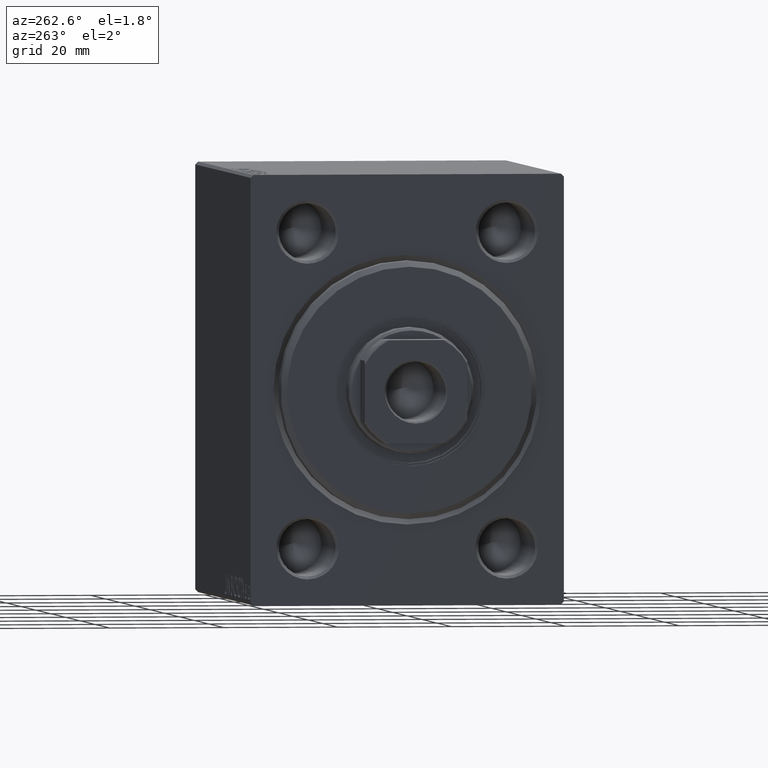
[diagram: clean part render]
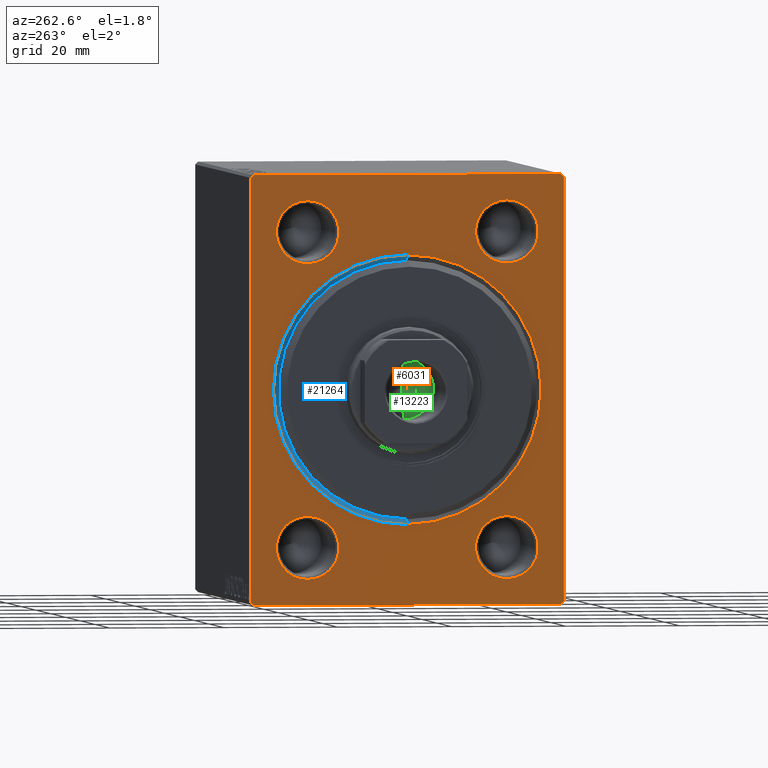
[diagram: same view with three faces highlighted in distinct colors, each labeled with its STEP entity id]
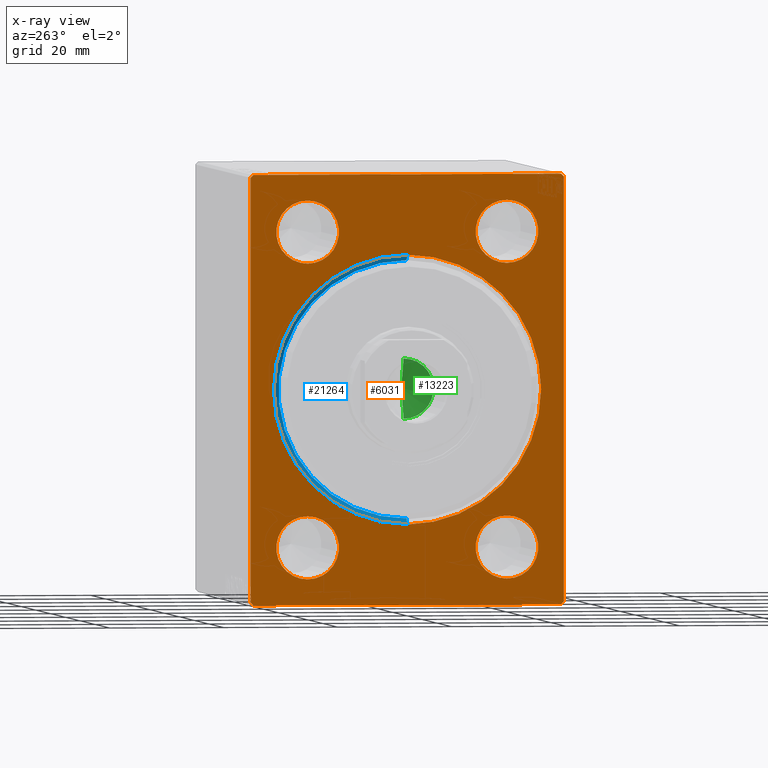
[diagram: x-ray of the same camera — body ghosted, the three highlighted faces saturated]
A machine part, auxiliary view with three faces highlighted in distinct colors.
The next image is the same camera in x-ray (body ghosted, the three faces saturated) — at least one of them is partly hidden behind the body in this view.
Their STEP definitions:

[orange] entity #6031 — the highlighted planar face has unit normal (1, 0, 0).
#347 = CIRCLE ( 'NONE', #27554, 23.50000000000000355 ) ;
#567 = EDGE_CURVE ( 'NONE', #15359, #8182, #32479, .T. ) ;
#964 = CIRCLE ( 'NONE', #10958, 5.500000000000018652 ) ;
#1106 = CARTESIAN_POINT ( 'NONE',  ( 0.000000000000000000, -17.50000000000000000, 27.50000000000000000 ) ) ;
#1153 = AXIS2_PLACEMENT_3D ( 'NONE', #26358, #9287, #29474 ) ;
#1640 = DIRECTION ( 'NONE',  ( 1.000000000000000000, 0.000000000000000000, 0.000000000000000000 ) ) ;
#2021 = DIRECTION ( 'NONE',  ( 0.000000000000000000, -1.000000000000000000, -2.523234146875355998E-16 ) ) ;
#2429 = EDGE_CURVE ( 'NONE', #30643, #29683, #347, .T. ) ;
#2618 = DIRECTION ( 'NONE',  ( -0.000000000000000000, -0.7071067811865474617, 0.7071067811865474617 ) ) ;
#2708 = VERTEX_POINT ( 'NONE', #27925 ) ;
#2914 = EDGE_LOOP ( 'NONE', ( #15602, #9484 ) ) ;
#3178 = FACE_OUTER_BOUND ( 'NONE', #21190, .T. ) ;
#3253 = ORIENTED_EDGE ( 'NONE', *, *, #567, .T. ) ;
#3358 = CARTESIAN_POINT ( 'NONE',  ( 0.000000000000000000, 27.49999999999999645, 37.00000000000001421 ) ) ;
#3762 = CARTESIAN_POINT ( 'NONE',  ( 0.000000000000000000, -27.49999999999999645, 37.49999999999998579 ) ) ;
#4647 = EDGE_LOOP ( 'NONE', ( #8966, #25151 ) ) ;
#4924 = DIRECTION ( 'NONE',  ( 1.000000000000000000, 0.000000000000000000, 0.000000000000000000 ) ) ;
#5108 = CARTESIAN_POINT ( 'NONE',  ( 0.000000000000000000, -17.50000000000000000, -27.49999999999999645 ) ) ;
#5403 = VERTEX_POINT ( 'NONE', #21709 ) ;
#5772 = DIRECTION ( 'NONE',  ( 1.000000000000000000, 0.000000000000000000, 0.000000000000000000 ) ) ;
#6031 = ADVANCED_FACE ( 'NONE', ( #33661, #40848, #9429, #20635, #33873, #3178 ), #6528, .F. ) ;
#6089 = DIRECTION ( 'NONE',  ( 1.000000000000000000, 0.000000000000000000, 0.000000000000000000 ) ) ;
#6130 = CARTESIAN_POINT ( 'NONE',  ( 0.000000000000000000, -27.49999999999999645, 36.99999999999997158 ) ) ;
#6528 = PLANE ( 'NONE',  #20363 ) ;
#6679 = CARTESIAN_POINT ( 'NONE',  ( 0.000000000000000000, 27.50000000000000355, -37.50000000000000000 ) ) ;
#6872 = VERTEX_POINT ( 'NONE', #39426 ) ;
#7288 = DIRECTION ( 'NONE',  ( 0.000000000000000000, 0.000000000000000000, -1.000000000000000000 ) ) ;
#7438 = EDGE_CURVE ( 'NONE', #6872, #29044, #22863, .T. ) ;
#7519 = ORIENTED_EDGE ( 'NONE', *, *, #14107, .F. ) ;
#8036 = LINE ( 'NONE', #39452, #10484 ) ;
#8165 = CARTESIAN_POINT ( 'NONE',  ( 0.000000000000000000, 27.50000000000000355, -37.00000000000000000 ) ) ;
#8182 = VERTEX_POINT ( 'NONE', #17575 ) ;
#8196 = DIRECTION ( 'NONE',  ( 1.000000000000000000, 0.000000000000000000, 0.000000000000000000 ) ) ;
#8224 = DIRECTION ( 'NONE',  ( 0.000000000000000000, 0.000000000000000000, -1.000000000000000000 ) ) ;
#8360 = VECTOR ( 'NONE', #37132, 1000.000000000000114 ) ;
#8530 = DIRECTION ( 'NONE',  ( -0.000000000000000000, 0.7071067811865474617, -0.7071067811865474617 ) ) ;
#8966 = ORIENTED_EDGE ( 'NONE', *, *, #17742, .T. ) ;
#9287 = DIRECTION ( 'NONE',  ( 1.000000000000000000, 0.000000000000000000, 0.000000000000000000 ) ) ;
#9429 = FACE_BOUND ( 'NONE', #4647, .T. ) ;
#9484 = ORIENTED_EDGE ( 'NONE', *, *, #23198, .T. ) ;
#9832 = VECTOR ( 'NONE', #40506, 1000.000000000000000 ) ;
#9833 = ORIENTED_EDGE ( 'NONE', *, *, #30583, .T. ) ;
#10162 = CARTESIAN_POINT ( 'NONE',  ( 0.000000000000000000, 2.877919977996280715E-15, -23.50000000000000355 ) ) ;
#10164 = CIRCLE ( 'NONE', #13755, 5.500000000000018652 ) ;
#10462 = LINE ( 'NONE', #3762, #33265 ) ;
#10484 = VECTOR ( 'NONE', #2021, 1000.000000000000000 ) ;
#10696 = AXIS2_PLACEMENT_3D ( 'NONE', #38869, #35279, #14417 ) ;
#10958 = AXIS2_PLACEMENT_3D ( 'NONE', #41137, #40915, #27671 ) ;
#11141 = CARTESIAN_POINT ( 'NONE',  ( 0.000000000000000000, 0.000000000000000000, 0.000000000000000000 ) ) ;
#11228 = EDGE_CURVE ( 'NONE', #41744, #29044, #23945, .T. ) ;
#11561 = CARTESIAN_POINT ( 'NONE',  ( 0.000000000000000000, 17.50000000000000000, 27.50000000000000000 ) ) ;
#11935 = DIRECTION ( 'NONE',  ( 0.000000000000000000, 0.000000000000000000, -1.000000000000000000 ) ) ;
#12856 = EDGE_CURVE ( 'NONE', #27767, #22864, #30829, .T. ) ;
#13134 = AXIS2_PLACEMENT_3D ( 'NONE', #11561, #8196, #32208 ) ;
#13309 = CIRCLE ( 'NONE', #1153, 5.500000000000022204 ) ;
#13755 = AXIS2_PLACEMENT_3D ( 'NONE', #41614, #38689, #7288 ) ;
#14107 = EDGE_CURVE ( 'NONE', #19360, #39274, #26606, .T. ) ;
#14417 = DIRECTION ( 'NONE',  ( 0.000000000000000000, 0.000000000000000000, -1.000000000000000000 ) ) ;
#15032 = ORIENTED_EDGE ( 'NONE', *, *, #11228, .F. ) ;
#15358 = VECTOR ( 'NONE', #2618, 1000.000000000000114 ) ;
#15359 = VERTEX_POINT ( 'NONE', #33213 ) ;
#15377 = VECTOR ( 'NONE', #8530, 1000.000000000000114 ) ;
#15602 = ORIENTED_EDGE ( 'NONE', *, *, #40711, .T. ) ;
#15639 = AXIS2_PLACEMENT_3D ( 'NONE', #1106, #4924, #17913 ) ;
#16140 = ORIENTED_EDGE ( 'NONE', *, *, #20702, .T. ) ;
#17022 = CARTESIAN_POINT ( 'NONE',  ( 0.000000000000000000, -17.50000000000000000, -33.00000000000001421 ) ) ;
#17042 = AXIS2_PLACEMENT_3D ( 'NONE', #43131, #1640, #11935 ) ;
#17228 = ORIENTED_EDGE ( 'NONE', *, *, #19650, .T. ) ;
#17418 = DIRECTION ( 'NONE',  ( 0.000000000000000000, 0.000000000000000000, -1.000000000000000000 ) ) ;
#17575 = CARTESIAN_POINT ( 'NONE',  ( 0.000000000000000000, 17.50000000000000000, 33.00000000000000711 ) ) ;
#17742 = EDGE_CURVE ( 'NONE', #29052, #5403, #39312, .T. ) ;
#17857 = EDGE_LOOP ( 'NONE', ( #25275, #9833 ) ) ;
#17913 = DIRECTION ( 'NONE',  ( 0.000000000000000000, 0.000000000000000000, -1.000000000000000000 ) ) ;
#19360 = VERTEX_POINT ( 'NONE', #31012 ) ;
#19642 = DIRECTION ( 'NONE',  ( 0.000000000000000000, 0.000000000000000000, -1.000000000000000000 ) ) ;
#19650 = EDGE_CURVE ( 'NONE', #29683, #30643, #38627, .T. ) ;
#20062 = VERTEX_POINT ( 'NONE', #35502 ) ;
#20363 = AXIS2_PLACEMENT_3D ( 'NONE', #36803, #6089, #30951 ) ;
#20537 = CIRCLE ( 'NONE', #31910, 5.500000000000018652 ) ;
#20635 = FACE_BOUND ( 'NONE', #39129, .T. ) ;
#20702 = EDGE_CURVE ( 'NONE', #41744, #39274, #27455, .T. ) ;
#20794 = EDGE_CURVE ( 'NONE', #28720, #20062, #32302, .T. ) ;
#21190 = EDGE_LOOP ( 'NONE', ( #34122, #40084, #26121, #22244, #15032, #16140, #7519, #24541 ) ) ;
#21709 = CARTESIAN_POINT ( 'NONE',  ( 0.000000000000000000, -17.50000000000000000, 21.99999999999998224 ) ) ;
#22244 = ORIENTED_EDGE ( 'NONE', *, *, #7438, .T. ) ;
#22581 = CIRCLE ( 'NONE', #39092, 5.500000000000001776 ) ;
#22863 = LINE ( 'NONE', #39273, #15377 ) ;
#22864 = VERTEX_POINT ( 'NONE', #40186 ) ;
#23198 = EDGE_CURVE ( 'NONE', #30001, #32391, #10164, .T. ) ;
#23508 = DIRECTION ( 'NONE',  ( 0.000000000000000000, -9.251858538542971581E-17, 1.000000000000000000 ) ) ;
#23945 = LINE ( 'NONE', #6679, #39109 ) ;
#24322 = CARTESIAN_POINT ( 'NONE',  ( 0.000000000000000000, -27.49999999999999645, 36.99999999999997158 ) ) ;
#24333 = ORIENTED_EDGE ( 'NONE', *, *, #2429, .T. ) ;
#24541 = ORIENTED_EDGE ( 'NONE', *, *, #33116, .T. ) ;
#25151 = ORIENTED_EDGE ( 'NONE', *, *, #42698, .T. ) ;
#25275 = ORIENTED_EDGE ( 'NONE', *, *, #20794, .T. ) ;
#26121 = ORIENTED_EDGE ( 'NONE', *, *, #39053, .F. ) ;
#26358 = CARTESIAN_POINT ( 'NONE',  ( 0.000000000000000000, -17.50000000000000000, 27.50000000000000000 ) ) ;
#26606 = LINE ( 'NONE', #39850, #9832 ) ;
#27455 = LINE ( 'NONE', #44082, #28615 ) ;
#27554 = AXIS2_PLACEMENT_3D ( 'NONE', #11141, #32234, #8224 ) ;
#27671 = DIRECTION ( 'NONE',  ( 0.000000000000000000, 0.000000000000000000, -1.000000000000000000 ) ) ;
#27767 = VERTEX_POINT ( 'NONE', #6130 ) ;
#27925 = CARTESIAN_POINT ( 'NONE',  ( 0.000000000000000000, -27.49999999999999645, -37.00000000000000000 ) ) ;
#28615 = VECTOR ( 'NONE', #41143, 1000.000000000000114 ) ;
#28720 = VERTEX_POINT ( 'NONE', #35720 ) ;
#29044 = VERTEX_POINT ( 'NONE', #3358 ) ;
#29052 = VERTEX_POINT ( 'NONE', #30693 ) ;
#29345 = EDGE_LOOP ( 'NONE', ( #17228, #24333 ) ) ;
#29474 = DIRECTION ( 'NONE',  ( 0.000000000000000000, 0.000000000000000000, -1.000000000000000000 ) ) ;
#29683 = VERTEX_POINT ( 'NONE', #39809 ) ;
#30001 = VERTEX_POINT ( 'NONE', #17022 ) ;
#30583 = EDGE_CURVE ( 'NONE', #20062, #28720, #964, .T. ) ;
#30643 = VERTEX_POINT ( 'NONE', #10162 ) ;
#30693 = CARTESIAN_POINT ( 'NONE',  ( 0.000000000000000000, -17.50000000000000000, 33.00000000000002132 ) ) ;
#30829 = LINE ( 'NONE', #24322, #8360 ) ;
#30951 = DIRECTION ( 'NONE',  ( 0.000000000000000000, 0.000000000000000000, -1.000000000000000000 ) ) ;
#31012 = CARTESIAN_POINT ( 'NONE',  ( 0.000000000000000000, -26.99999999999999645, -37.50000000000000000 ) ) ;
#31910 = AXIS2_PLACEMENT_3D ( 'NONE', #5108, #39630, #36275 ) ;
#32208 = DIRECTION ( 'NONE',  ( 0.000000000000000000, 0.000000000000000000, -1.000000000000000000 ) ) ;
#32234 = DIRECTION ( 'NONE',  ( 1.000000000000000000, 0.000000000000000000, 0.000000000000000000 ) ) ;
#32302 = CIRCLE ( 'NONE', #10696, 5.500000000000018652 ) ;
#32391 = VERTEX_POINT ( 'NONE', #43104 ) ;
#32479 = CIRCLE ( 'NONE', #13134, 5.500000000000001776 ) ;
#32919 = EDGE_CURVE ( 'NONE', #27767, #2708, #10462, .T. ) ;
#33116 = EDGE_CURVE ( 'NONE', #19360, #2708, #40272, .T. ) ;
#33213 = CARTESIAN_POINT ( 'NONE',  ( 0.000000000000000000, 17.50000000000000000, 21.99999999999999645 ) ) ;
#33265 = VECTOR ( 'NONE', #17418, 1000.000000000000000 ) ;
#33319 = CARTESIAN_POINT ( 'NONE',  ( 0.000000000000000000, -26.99999999999999645, -37.50000000000000000 ) ) ;
#33661 = FACE_BOUND ( 'NONE', #29345, .T. ) ;
#33873 = FACE_BOUND ( 'NONE', #17857, .T. ) ;
#34122 = ORIENTED_EDGE ( 'NONE', *, *, #32919, .F. ) ;
#35279 = DIRECTION ( 'NONE',  ( 1.000000000000000000, 0.000000000000000000, 0.000000000000000000 ) ) ;
#35502 = CARTESIAN_POINT ( 'NONE',  ( 0.000000000000000000, 17.50000000000000000, -33.00000000000001421 ) ) ;
#35720 = CARTESIAN_POINT ( 'NONE',  ( 0.000000000000000000, 17.50000000000000000, -21.99999999999997868 ) ) ;
#36275 = DIRECTION ( 'NONE',  ( 0.000000000000000000, 0.000000000000000000, -1.000000000000000000 ) ) ;
#36639 = CARTESIAN_POINT ( 'NONE',  ( 0.000000000000000000, 27.00000000000000355, -37.50000000000000000 ) ) ;
#36803 = CARTESIAN_POINT ( 'NONE',  ( 0.000000000000000000, 0.000000000000000000, 0.000000000000000000 ) ) ;
#37132 = DIRECTION ( 'NONE',  ( -0.000000000000000000, 0.7071067811865474617, 0.7071067811865474617 ) ) ;
#38627 = CIRCLE ( 'NONE', #17042, 23.50000000000000355 ) ;
#38689 = DIRECTION ( 'NONE',  ( 1.000000000000000000, 0.000000000000000000, 0.000000000000000000 ) ) ;
#38869 = CARTESIAN_POINT ( 'NONE',  ( 0.000000000000000000, 17.50000000000000000, -27.49999999999999645 ) ) ;
#39053 = EDGE_CURVE ( 'NONE', #6872, #22864, #8036, .T. ) ;
#39092 = AXIS2_PLACEMENT_3D ( 'NONE', #40080, #5772, #19642 ) ;
#39109 = VECTOR ( 'NONE', #23508, 1000.000000000000000 ) ;
#39129 = EDGE_LOOP ( 'NONE', ( #42272, #3253 ) ) ;
#39273 = CARTESIAN_POINT ( 'NONE',  ( 0.000000000000000000, 27.00000000000001066, 37.50000000000000000 ) ) ;
#39274 = VERTEX_POINT ( 'NONE', #36639 ) ;
#39312 = CIRCLE ( 'NONE', #15639, 5.500000000000022204 ) ;
#39426 = CARTESIAN_POINT ( 'NONE',  ( 0.000000000000000000, 27.00000000000001066, 37.50000000000000000 ) ) ;
#39452 = CARTESIAN_POINT ( 'NONE',  ( 0.000000000000000000, 27.49999999999999645, 37.50000000000000000 ) ) ;
#39630 = DIRECTION ( 'NONE',  ( 1.000000000000000000, 0.000000000000000000, 0.000000000000000000 ) ) ;
#39809 = CARTESIAN_POINT ( 'NONE',  ( 0.000000000000000000, 0.000000000000000000, 23.50000000000000355 ) ) ;
#39850 = CARTESIAN_POINT ( 'NONE',  ( 0.000000000000000000, -27.49999999999999645, -37.50000000000000000 ) ) ;
#40080 = CARTESIAN_POINT ( 'NONE',  ( 0.000000000000000000, 17.50000000000000000, 27.50000000000000000 ) ) ;
#40084 = ORIENTED_EDGE ( 'NONE', *, *, #12856, .T. ) ;
#40186 = CARTESIAN_POINT ( 'NONE',  ( 0.000000000000000000, -26.99999999999998224, 37.49999999999998579 ) ) ;
#40272 = LINE ( 'NONE', #33319, #15358 ) ;
#40506 = DIRECTION ( 'NONE',  ( 0.000000000000000000, 1.000000000000000000, 0.000000000000000000 ) ) ;
#40711 = EDGE_CURVE ( 'NONE', #32391, #30001, #20537, .T. ) ;
#40819 = EDGE_CURVE ( 'NONE', #8182, #15359, #22581, .T. ) ;
#40848 = FACE_BOUND ( 'NONE', #2914, .T. ) ;
#40915 = DIRECTION ( 'NONE',  ( 1.000000000000000000, 0.000000000000000000, 0.000000000000000000 ) ) ;
#41137 = CARTESIAN_POINT ( 'NONE',  ( 0.000000000000000000, 17.50000000000000000, -27.49999999999999645 ) ) ;
#41143 = DIRECTION ( 'NONE',  ( 0.000000000000000000, -0.7071067811865474617, -0.7071067811865474617 ) ) ;
#41614 = CARTESIAN_POINT ( 'NONE',  ( 0.000000000000000000, -17.50000000000000000, -27.49999999999999645 ) ) ;
#41744 = VERTEX_POINT ( 'NONE', #8165 ) ;
#42272 = ORIENTED_EDGE ( 'NONE', *, *, #40819, .T. ) ;
#42698 = EDGE_CURVE ( 'NONE', #5403, #29052, #13309, .T. ) ;
#43104 = CARTESIAN_POINT ( 'NONE',  ( 0.000000000000000000, -17.50000000000000000, -21.99999999999997868 ) ) ;
#43131 = CARTESIAN_POINT ( 'NONE',  ( 0.000000000000000000, 0.000000000000000000, 0.000000000000000000 ) ) ;
#44082 = CARTESIAN_POINT ( 'NONE',  ( 0.000000000000000000, 27.50000000000000355, -37.00000000000000000 ) ) ;

[blue] entity #21264 — the highlighted conical surface has half-angle 45 deg.
#347 = CIRCLE ( 'NONE', #27554, 23.50000000000000355 ) ;
#799 = EDGE_LOOP ( 'NONE', ( #4916, #13789, #17789, #1759 ) ) ;
#1262 = VERTEX_POINT ( 'NONE', #28469 ) ;
#1759 = ORIENTED_EDGE ( 'NONE', *, *, #2429, .F. ) ;
#2149 = CARTESIAN_POINT ( 'NONE',  ( 1.000000000000000888, 2.755455298081545172E-15, -22.50000000000000355 ) ) ;
#2429 = EDGE_CURVE ( 'NONE', #30643, #29683, #347, .T. ) ;
#3593 = EDGE_CURVE ( 'NONE', #32303, #30643, #9067, .T. ) ;
#4916 = ORIENTED_EDGE ( 'NONE', *, *, #3593, .F. ) ;
#6434 = AXIS2_PLACEMENT_3D ( 'NONE', #16586, #24207, #37894 ) ;
#7397 = CARTESIAN_POINT ( 'NONE',  ( 1.000000000000000888, 0.000000000000000000, 0.000000000000000000 ) ) ;
#8224 = DIRECTION ( 'NONE',  ( 0.000000000000000000, 0.000000000000000000, -1.000000000000000000 ) ) ;
#9067 = LINE ( 'NONE', #2149, #9644 ) ;
#9644 = VECTOR ( 'NONE', #36875, 1000.000000000000114 ) ;
#10162 = CARTESIAN_POINT ( 'NONE',  ( 0.000000000000000000, 2.877919977996280715E-15, -23.50000000000000355 ) ) ;
#11141 = CARTESIAN_POINT ( 'NONE',  ( 0.000000000000000000, 0.000000000000000000, 0.000000000000000000 ) ) ;
#13789 = ORIENTED_EDGE ( 'NONE', *, *, #40358, .F. ) ;
#14134 = DIRECTION ( 'NONE',  ( 0.000000000000000000, 0.000000000000000000, -1.000000000000000000 ) ) ;
#14483 = CARTESIAN_POINT ( 'NONE',  ( 1.000000000000000888, 0.000000000000000000, 22.50000000000000355 ) ) ;
#16586 = CARTESIAN_POINT ( 'NONE',  ( 1.000000000000000888, 0.000000000000000000, 0.000000000000000000 ) ) ;
#17789 = ORIENTED_EDGE ( 'NONE', *, *, #34694, .T. ) ;
#21264 = ADVANCED_FACE ( 'NONE', ( #37673 ), #36501, .F. ) ;
#21424 = LINE ( 'NONE', #14483, #22519 ) ;
#22519 = VECTOR ( 'NONE', #35125, 1000.000000000000114 ) ;
#24207 = DIRECTION ( 'NONE',  ( -1.000000000000000000, 0.000000000000000000, 0.000000000000000000 ) ) ;
#27554 = AXIS2_PLACEMENT_3D ( 'NONE', #11141, #32234, #8224 ) ;
#28469 = CARTESIAN_POINT ( 'NONE',  ( 1.000000000000000888, 0.000000000000000000, 22.50000000000000355 ) ) ;
#29683 = VERTEX_POINT ( 'NONE', #39809 ) ;
#29767 = AXIS2_PLACEMENT_3D ( 'NONE', #7397, #34994, #14134 ) ;
#30643 = VERTEX_POINT ( 'NONE', #10162 ) ;
#31202 = CIRCLE ( 'NONE', #29767, 22.50000000000000355 ) ;
#32234 = DIRECTION ( 'NONE',  ( 1.000000000000000000, 0.000000000000000000, 0.000000000000000000 ) ) ;
#32303 = VERTEX_POINT ( 'NONE', #41980 ) ;
#34694 = EDGE_CURVE ( 'NONE', #1262, #29683, #21424, .T. ) ;
#34994 = DIRECTION ( 'NONE',  ( -1.000000000000000000, 0.000000000000000000, 0.000000000000000000 ) ) ;
#35125 = DIRECTION ( 'NONE',  ( -0.7071067811865474617, 0.000000000000000000, 0.7071067811865474617 ) ) ;
#36501 = CONICAL_SURFACE ( 'NONE', #6434, 22.50000000000000355, 0.7853981633974482790 ) ;
#36875 = DIRECTION ( 'NONE',  ( -0.7071067811865474617, 8.659560562354932858E-17, -0.7071067811865474617 ) ) ;
#37673 = FACE_OUTER_BOUND ( 'NONE', #799, .T. ) ;
#37894 = DIRECTION ( 'NONE',  ( 0.000000000000000000, 0.000000000000000000, 1.000000000000000000 ) ) ;
#39809 = CARTESIAN_POINT ( 'NONE',  ( 0.000000000000000000, 0.000000000000000000, 23.50000000000000355 ) ) ;
#40358 = EDGE_CURVE ( 'NONE', #1262, #32303, #31202, .T. ) ;
#41980 = CARTESIAN_POINT ( 'NONE',  ( 1.000000000000000888, 2.755455298081545172E-15, -22.50000000000000355 ) ) ;

[green] entity #13223 — the highlighted conical surface has half-angle 59 deg.
#406 = VECTOR ( 'NONE', #32707, 1000.000000000000000 ) ;
#1191 = VERTEX_POINT ( 'NONE', #10522 ) ;
#1726 = CARTESIAN_POINT ( 'NONE',  ( -5.249999999999995559, 6.429395695523600208E-16, 60.00000000000001421 ) ) ;
#2696 = AXIS2_PLACEMENT_3D ( 'NONE', #41992, #4101, #15056 ) ;
#4101 = DIRECTION ( 'NONE',  ( -0.000000000000000000, -0.000000000000000000, 1.000000000000000000 ) ) ;
#5350 = CARTESIAN_POINT ( 'NONE',  ( 5.249999999999995559, 0.000000000000000000, 60.00000000000001421 ) ) ;
#6484 = ORIENTED_EDGE ( 'NONE', *, *, #39450, .T. ) ;
#7445 = CARTESIAN_POINT ( 'NONE',  ( 0.000000000000000000, 0.000000000000000000, 60.00000000000001421 ) ) ;
#8104 = DIRECTION ( 'NONE',  ( -0.000000000000000000, -0.000000000000000000, 1.000000000000000000 ) ) ;
#9498 = EDGE_CURVE ( 'NONE', #1191, #33846, #33366, .T. ) ;
#10522 = CARTESIAN_POINT ( 'NONE',  ( -4.624611670276745537E-15, 0.000000000000000000, 56.84548175010531423 ) ) ;
#11016 = FACE_OUTER_BOUND ( 'NONE', #41306, .T. ) ;
#11553 = ORIENTED_EDGE ( 'NONE', *, *, #16278, .T. ) ;
#13223 = ADVANCED_FACE ( 'NONE', ( #11016 ), #39183, .F. ) ;
#13688 = DIRECTION ( 'NONE',  ( -0.8571673007021115565, 1.049727191138617710E-16, 0.5150380749100554878 ) ) ;
#15056 = DIRECTION ( 'NONE',  ( 1.000000000000000000, 0.000000000000000000, 0.000000000000000000 ) ) ;
#16278 = EDGE_CURVE ( 'NONE', #1191, #17289, #27603, .T. ) ;
#17289 = VERTEX_POINT ( 'NONE', #1726 ) ;
#17325 = DIRECTION ( 'NONE',  ( 1.000000000000000000, 0.000000000000000000, 0.000000000000000000 ) ) ;
#20415 = CARTESIAN_POINT ( 'NONE',  ( -5.249999999999995559, 6.429395695523600208E-16, 60.00000000000001421 ) ) ;
#27004 = CIRCLE ( 'NONE', #42011, 5.249999999999995559 ) ;
#27603 = LINE ( 'NONE', #20415, #42122 ) ;
#32707 = DIRECTION ( 'NONE',  ( 0.8571673007021115565, 0.000000000000000000, 0.5150380749100554878 ) ) ;
#33366 = LINE ( 'NONE', #5350, #406 ) ;
#33846 = VERTEX_POINT ( 'NONE', #42531 ) ;
#39183 = CONICAL_SURFACE ( 'NONE', #2696, 5.249999999999995559, 1.029744258676652979 ) ;
#39450 = EDGE_CURVE ( 'NONE', #17289, #33846, #27004, .T. ) ;
#39930 = ORIENTED_EDGE ( 'NONE', *, *, #9498, .F. ) ;
#41306 = EDGE_LOOP ( 'NONE', ( #39930, #11553, #6484 ) ) ;
#41992 = CARTESIAN_POINT ( 'NONE',  ( 0.000000000000000000, 0.000000000000000000, 60.00000000000001421 ) ) ;
#42011 = AXIS2_PLACEMENT_3D ( 'NONE', #7445, #8104, #17325 ) ;
#42122 = VECTOR ( 'NONE', #13688, 1000.000000000000000 ) ;
#42531 = CARTESIAN_POINT ( 'NONE',  ( 5.249999999999995559, 0.000000000000000000, 60.00000000000001421 ) ) ;